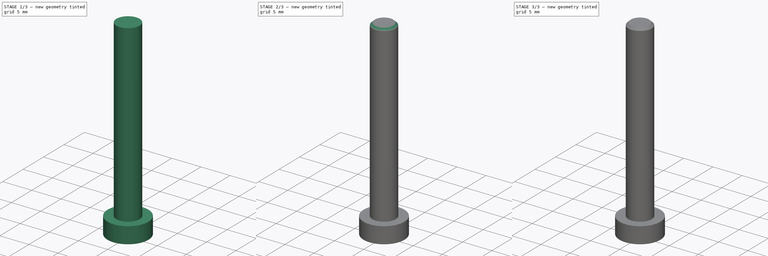
[diagram: build sequence overview — one tinted view per stage of 3, left to right]
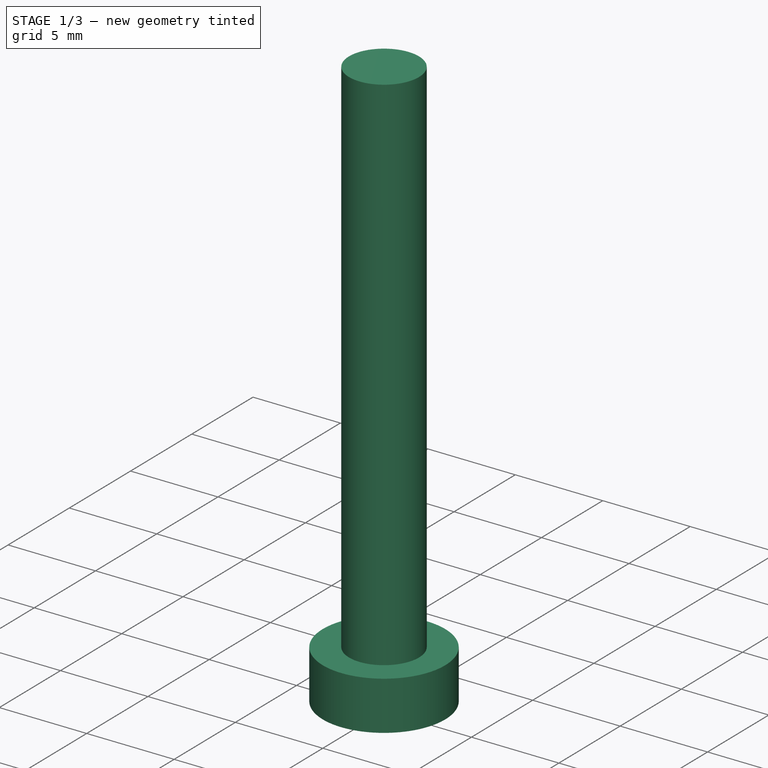
[diagram: stage 1 of 3 — iso view after this stage's code; geometry added in this stage tinted green]
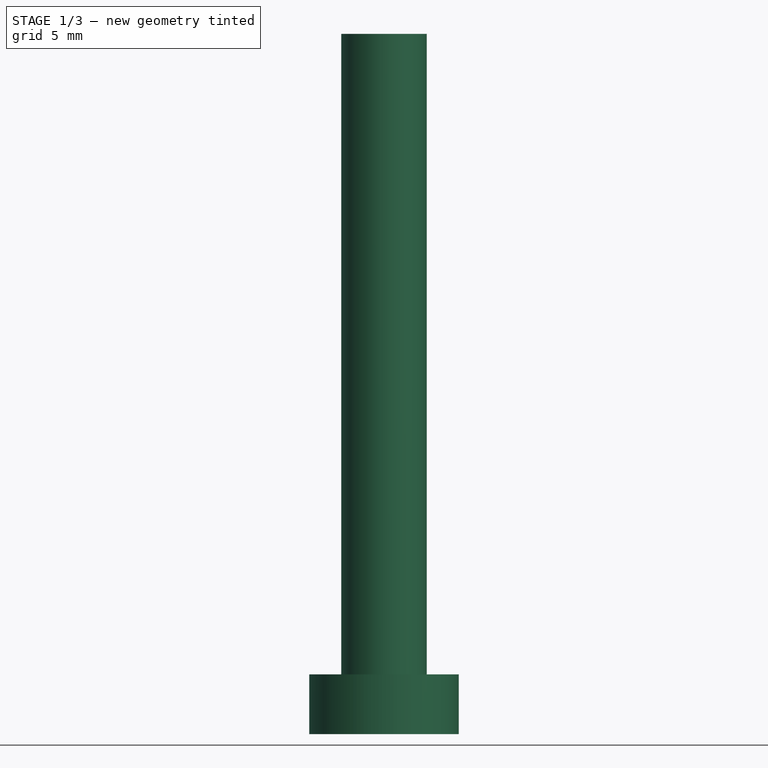
[diagram: stage 1 of 3 — front view after this stage's code; geometry added in this stage tinted green]
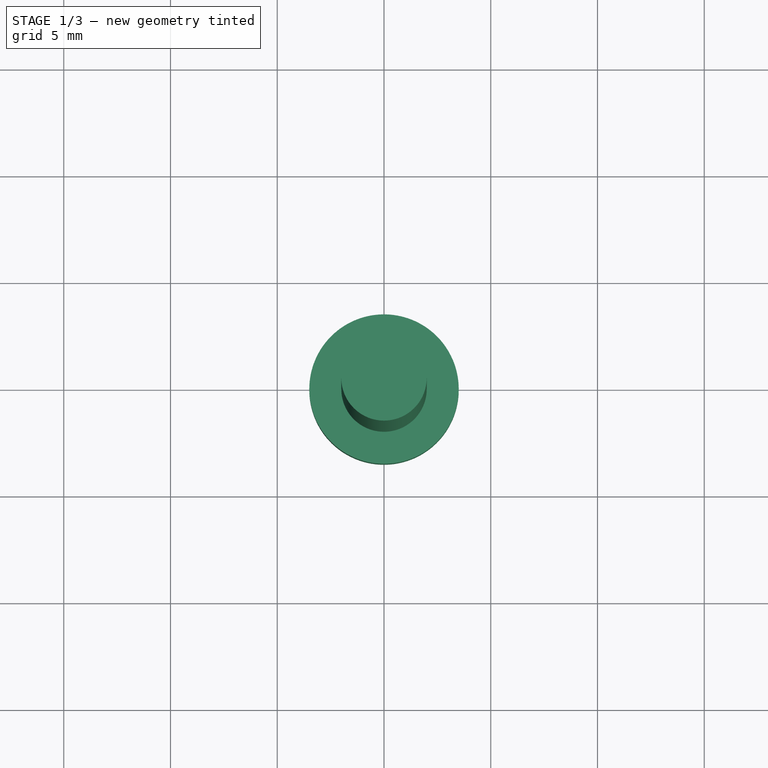
[diagram: stage 1 of 3 — top view after this stage's code; geometry added in this stage tinted green]
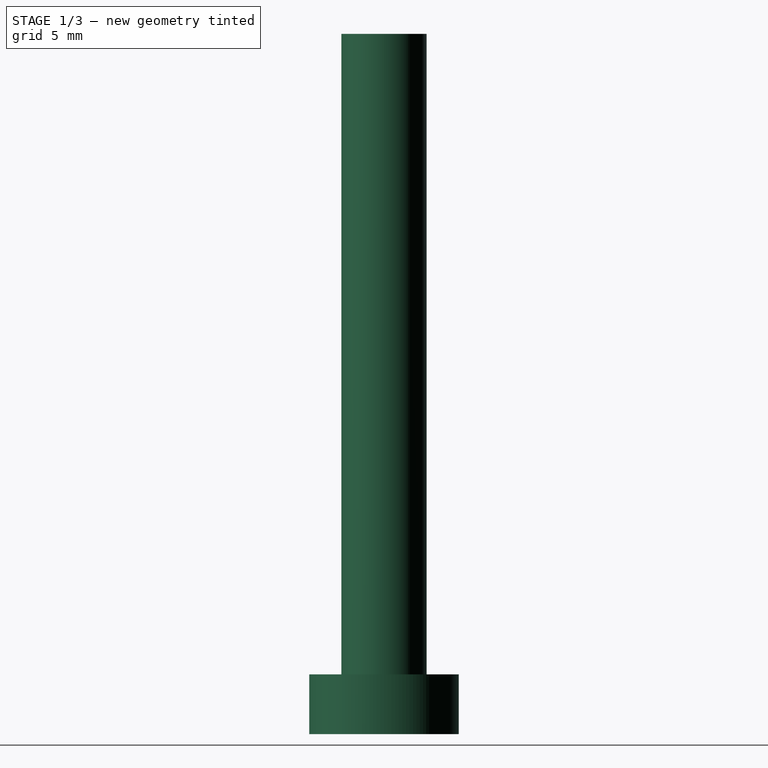
[diagram: stage 1 of 3 — right view after this stage's code; geometry added in this stage tinted green]
FCSTD DOCUMENT  (FreeCAD 0.14R3310 (Git))
Label: 38. TORNILLO M4X30
License: CC-BY 3.0
LicenseURL: http://creativecommons.org/licenses/by/3.0/
objects: Sketcher::SketchObject×4, PartDesign::Pad×2, PartDesign::Chamfer×2, PartDesign::Pocket×2
note: 14 computed .brp shape members not serialized (recipe doc carries the construction recipe); baked Part::Feature solids carry a one-line shape summary decoded from their .brp

FEATURE [Sketcher::SketchObject] Sketch
  sketch-geometry (1):
    g0: Circle CenterX=0 CenterY=0 CenterZ=0 NormalX=0 NormalY=0 NormalZ=1 Radius=3.5
  constraints (2):
    c: Coincident(g0,g-1)
    c: Radius(g0) = 3.5
FEATURE [PartDesign::Pad] Pad
  Length = 2.8
  Length2 = 100
  Sketch = -> Sketch
  Type = 0
FEATURE [Sketcher::SketchObject] Sketch001
  Placement = pos=(0,0,2.8) rot=(0,0,1;0rad)
  Support = -> Pad [Face3]
  sketch-geometry (1):
    g0: Circle CenterX=0 CenterY=0 CenterZ=0 NormalX=0 NormalY=0 NormalZ=1 Radius=2
  constraints (2):
    c: Coincident(g0,g-1)
    c: Radius(g0) = 2
FEATURE [PartDesign::Pad] Pad001
  Length = 30
  Length2 = 100
  Sketch = -> Sketch001
  Type = 0
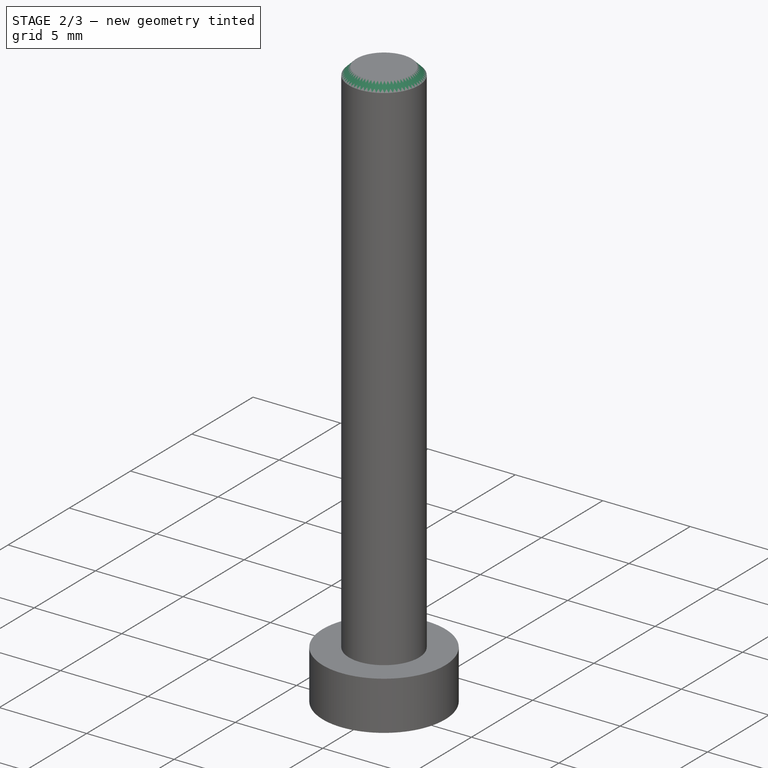
[diagram: stage 2 of 3 — iso view after this stage's code; geometry added in this stage tinted green]
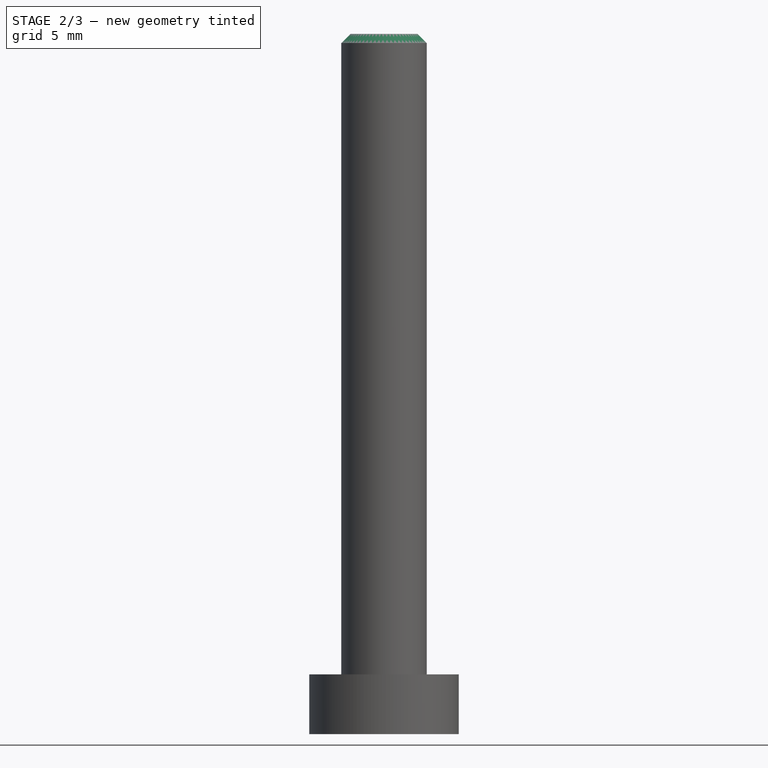
[diagram: stage 2 of 3 — front view after this stage's code; geometry added in this stage tinted green]
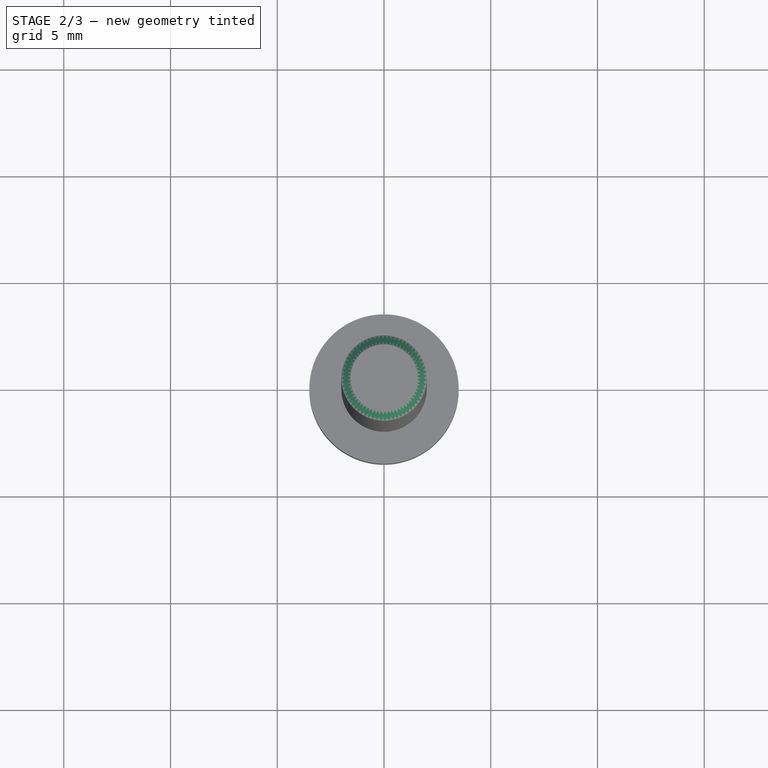
[diagram: stage 2 of 3 — top view after this stage's code; geometry added in this stage tinted green]
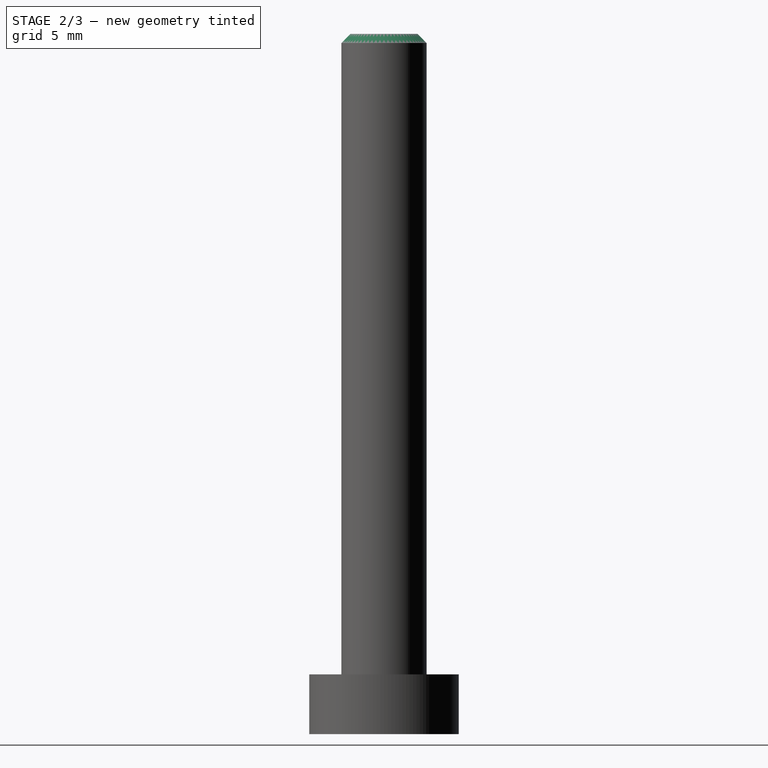
[diagram: stage 2 of 3 — right view after this stage's code; geometry added in this stage tinted green]
FEATURE [PartDesign::Chamfer] Chamfer
  Base = -> Pad001 [Edge6]
  Size = 0.43
FEATURE [Sketcher::SketchObject] Sketch002
  Placement = pos=(0,0,0) rot=(1,0,0;3.14159rad)
  Support = -> Chamfer [Face6]
  sketch-geometry (6):
    g0: LineSegment StartX=-0.866025 StartY=1.5 StartZ=0 EndX=0.866025 EndY=1.5 EndZ=0
    g1: LineSegment StartX=0.866025 StartY=1.5 StartZ=0 EndX=1.73205 EndY=0 EndZ=0
    g2: LineSegment StartX=1.73205 StartY=0 StartZ=0 EndX=0.866025 EndY=-1.5 EndZ=0
    g3: LineSegment StartX=0.866025 StartY=-1.5 StartZ=0 EndX=-0.866025 EndY=-1.5 EndZ=0
    g4: LineSegment StartX=-0.866025 StartY=-1.5 StartZ=0 EndX=-1.73205 EndY=0 EndZ=0
    g5: LineSegment StartX=-1.73205 StartY=0 StartZ=0 EndX=-0.866025 EndY=1.5 EndZ=0
  constraints (18):
    c: Horizontal(g0)
    c: Coincident(g0,g1)
    c: PointOnObject(g1,g-1)
    c: Coincident(g1,g2)
    c: Coincident(g2,g3)
    c: Horizontal(g3)
    c: Coincident(g3,g4)
    c: PointOnObject(g4,g-1)
    c: Coincident(g4,g5)
    c: Coincident(g5,g0)
    c: Equal(g5,g0)
    c: Equal(g0,g1)
    c: Equal(g1,g2)
    c: Equal(g2,g4)
    c: Equal(g4,g3)
    c: Symmetric(g1,g4,g-2)
    c: Distance(g-1,g4) = 1.5
    c: Angle(g3,g4) = 2.0944
FEATURE [PartDesign::Pocket] Pocket
  Length = 2
  Sketch = -> Sketch002
  Type = 0
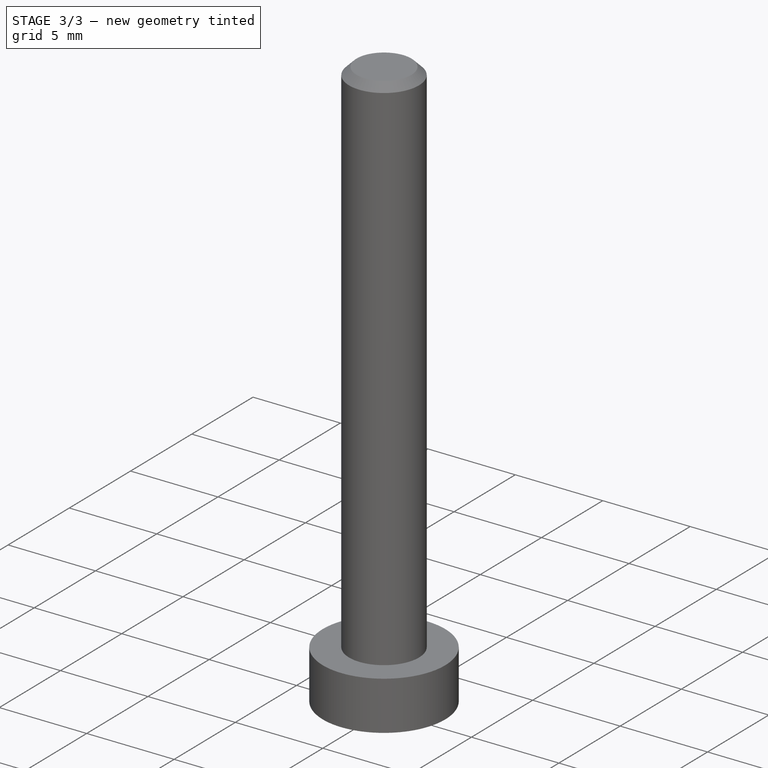
[diagram: stage 3 of 3 — iso view after this stage's code; geometry added in this stage tinted green]
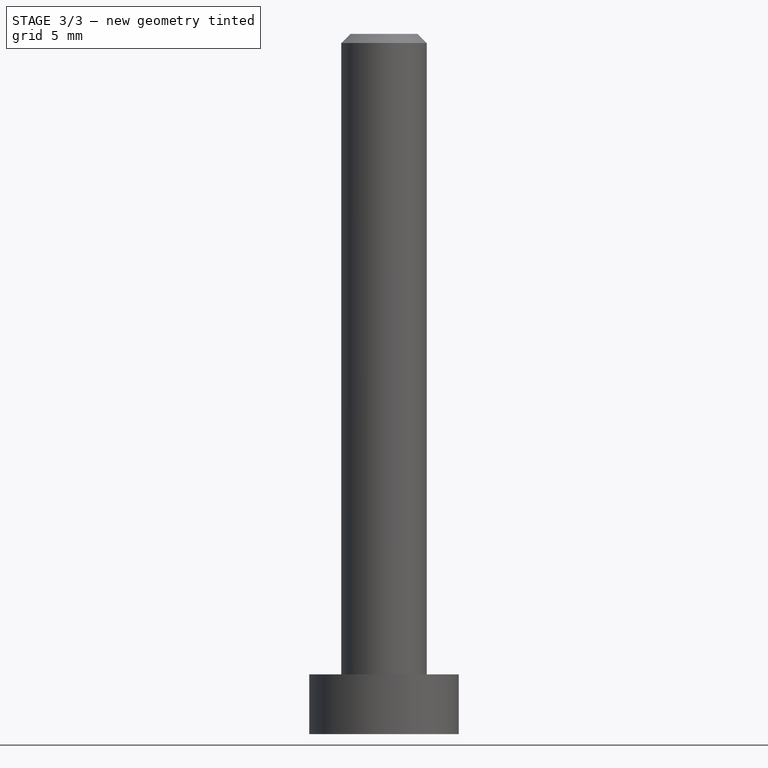
[diagram: stage 3 of 3 — front view after this stage's code; geometry added in this stage tinted green]
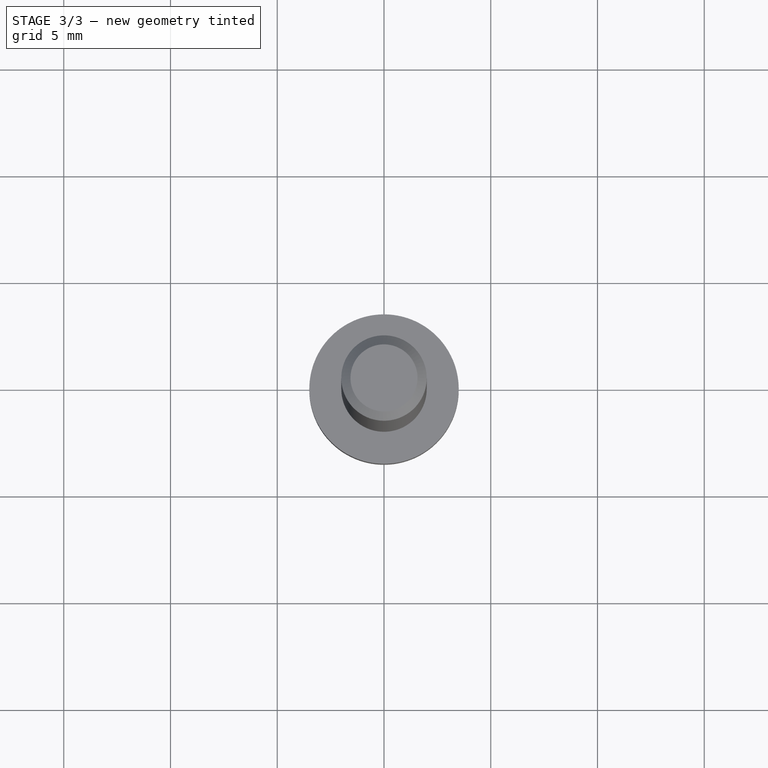
[diagram: stage 3 of 3 — top view after this stage's code; geometry added in this stage tinted green]
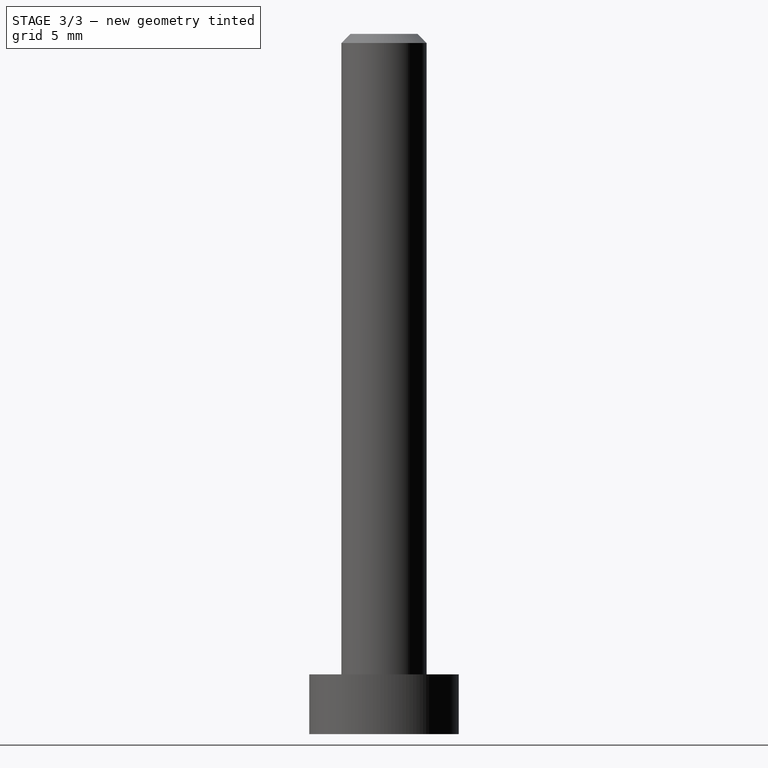
[diagram: stage 3 of 3 — right view after this stage's code; geometry added in this stage tinted green]
FEATURE [PartDesign::Chamfer] Chamfer001
  Base = -> Pocket [Edge26,Edge25,Edge23,Edge21,Edge19,Edge16]
  Size = 0.6
FEATURE [Sketcher::SketchObject] Sketch003
  Placement = pos=(0,0,2) rot=(1,0,0;3.14159rad)
  Support = -> Chamfer001 [Face8]
  sketch-geometry (1):
    g0: Circle CenterX=0 CenterY=0 CenterZ=0 NormalX=0 NormalY=0 NormalZ=1 Radius=1.05
  constraints (2):
    c: Coincident(g0,g-1)
    c: Radius(g0) = 1.05
FEATURE [PartDesign::Pocket] Pocket001
  Length = 3
  Midplane = true
  Sketch = -> Sketch003
  Type = 0
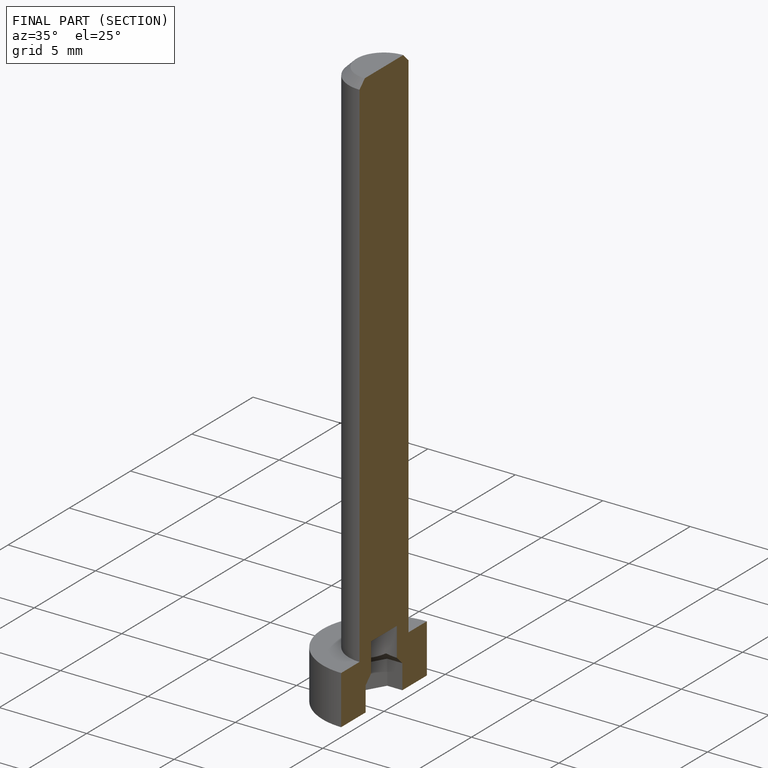
[diagram: finished part — half-section view (interior)]
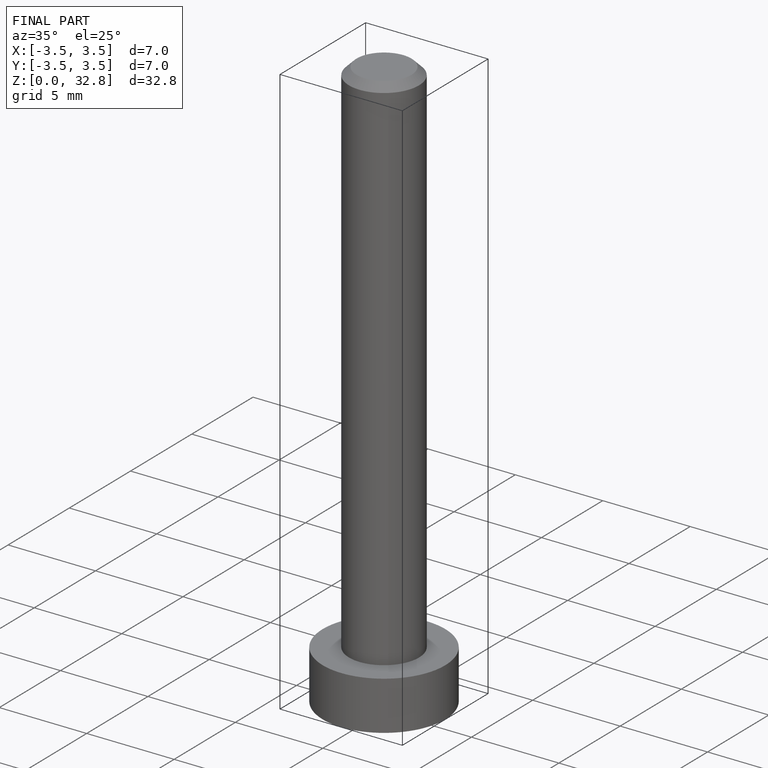
[diagram: finished part — iso view with bounding-box wireframe]
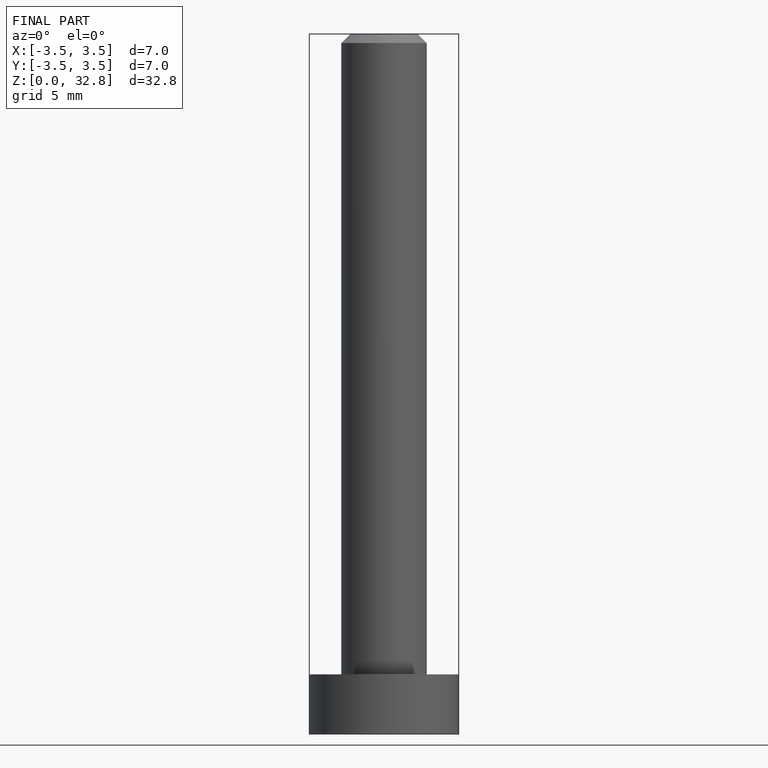
[diagram: finished part — front view with bounding-box wireframe]
